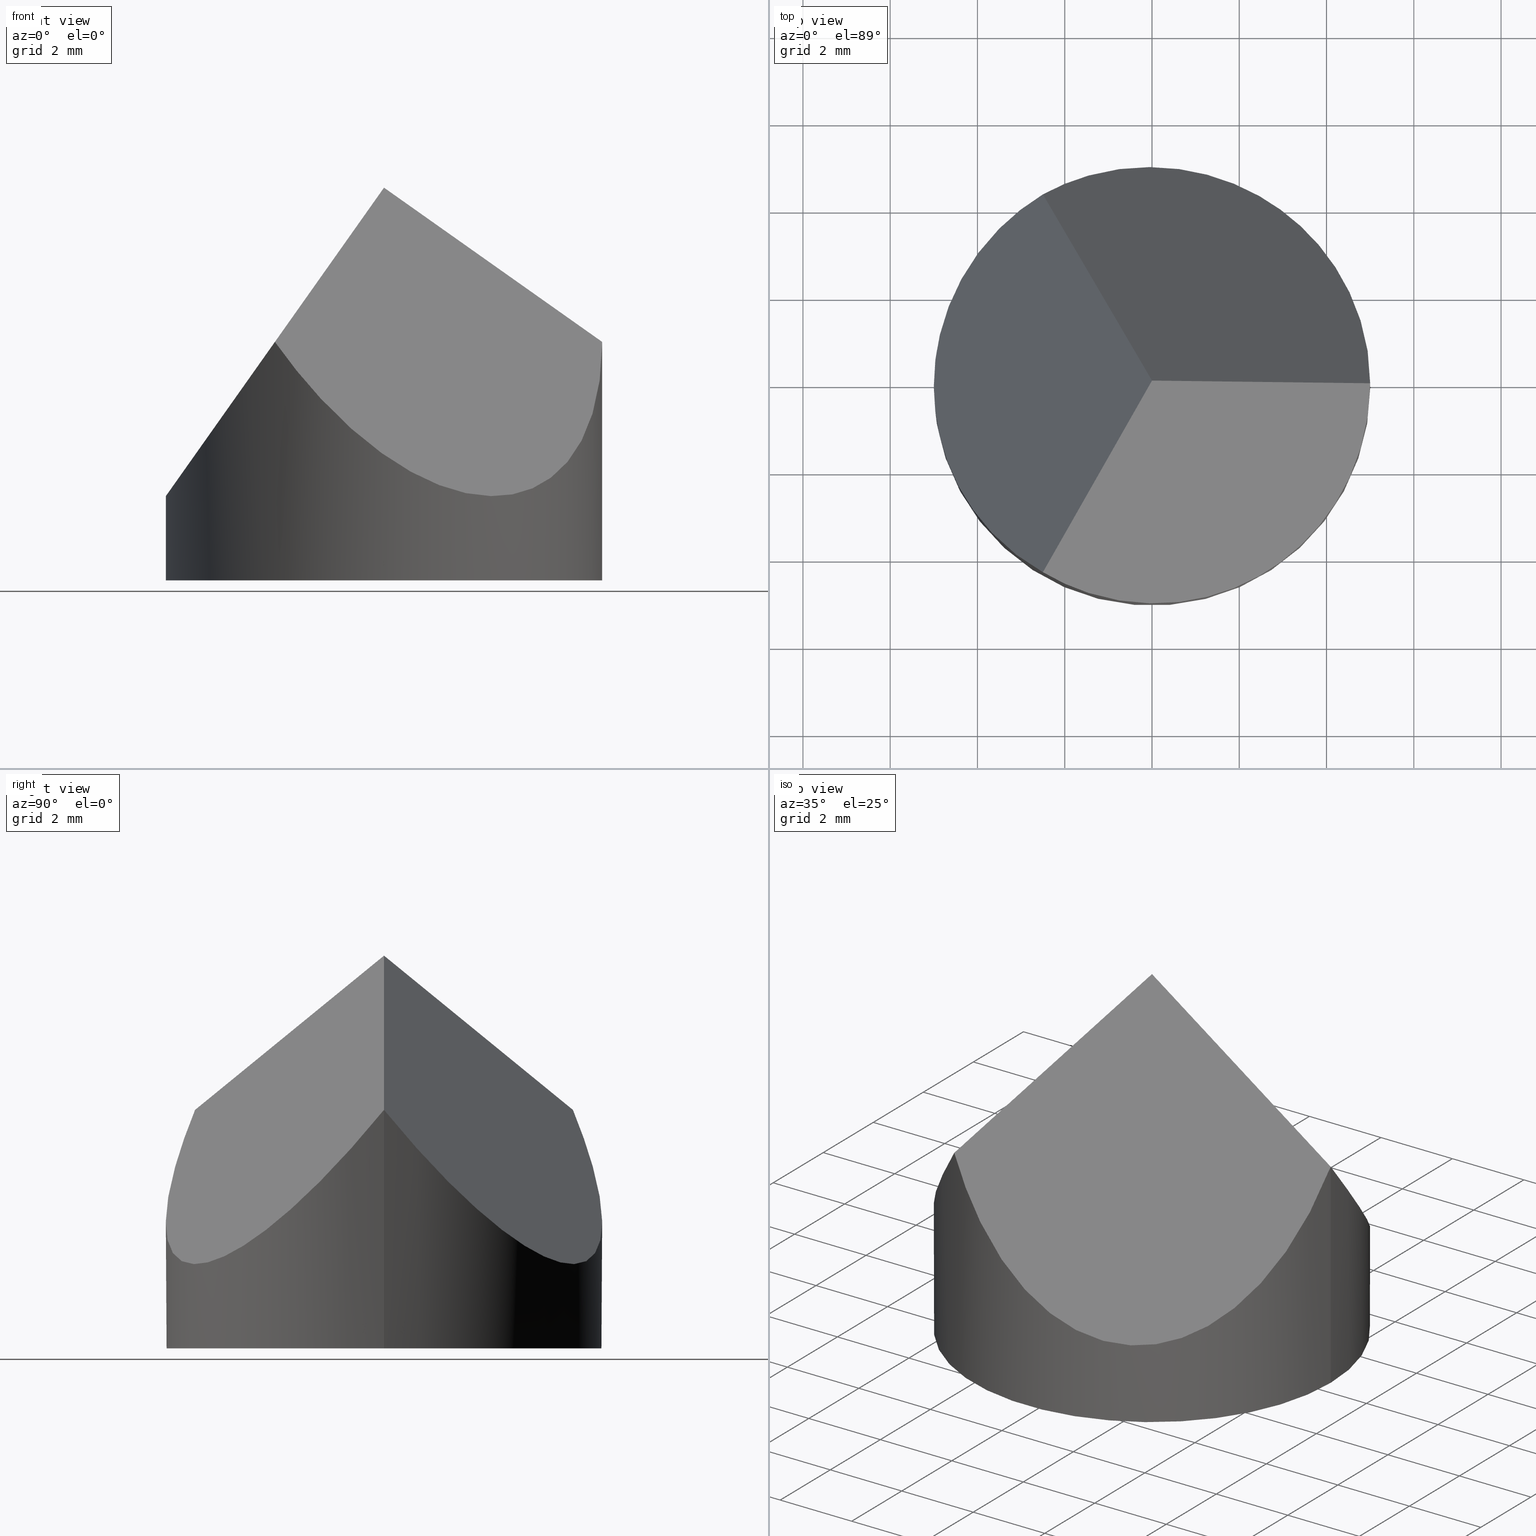
[diagram: canonical four-view strip — front | top / right | iso, engineering-drawing reading convention]
A machine part, canonical four-view strip (front | top / right | iso — engineering-drawing reading convention). The complete STEP part file that produces these views, byte-faithful:
ISO-10303-21;
HEADER;
FILE_DESCRIPTION (( 'STEP AP203' ),
    '1' );
FILE_NAME ('371501.STEP',
    '2019-07-24T08:01:09',
    ( '' ),
    ( '' ),
    'SwSTEP 2.0',
    'SolidWorks 2016',
    '' );
FILE_SCHEMA (( 'CONFIG_CONTROL_DESIGN' ));
ENDSEC;

DATA;
#1 = CARTESIAN_POINT ( 'NONE',  ( 11.69134295108994500, 6.749999999999978700, 9.000000000000000000 ) ) ;
#2 = EDGE_CURVE ( 'NONE', #269, #208, #50, .T. ) ;
#3 = APPROVAL_DATE_TIME ( #197, #143 ) ;
#4 = ORIENTED_EDGE ( 'NONE', *, *, #281, .T. ) ;
#5 = CALENDAR_DATE ( 2019, 24, 7 ) ;
#6 = SECURITY_CLASSIFICATION ( '', '', #232 ) ;
#7 = EDGE_CURVE ( 'NONE', #274, #170, #89, .T. ) ;
#8 = ORIENTED_EDGE ( 'NONE', *, *, #180, .T. ) ;
#9 = COORDINATED_UNIVERSAL_TIME_OFFSET ( 8, 0, .AHEAD. ) ;
#10 = PERSON_AND_ORGANIZATION_ROLE ( 'classification_officer' ) ;
#11 = EDGE_LOOP ( 'NONE', ( #287, #4, #294, #28 ) ) ;
#12 = CARTESIAN_POINT ( 'NONE',  ( -4.084936490538905400, 3.415063509461090600, 3.224227220163949700 ) ) ;
#13 = PERSON_AND_ORGANIZATION ( #14, #183 ) ;
#14 = PERSON ( 'δָ��', 'δָ��', 'δָ��', ('δָ��'), ('δָ��'), ('δָ��') ) ;
#15 = DIRECTION ( 'NONE',  ( 0.0000000000000000000, 0.0000000000000000000, 1.000000000000000000 ) ) ;
#16 = APPLICATION_PROTOCOL_DEFINITION ( 'international standard', 'config_control_design', 1994, #101 ) ;
#17 = DIRECTION ( 'NONE',  ( -0.0000000000000000000, -0.0000000000000000000, -1.000000000000000000 ) ) ;
#18 = APPROVAL_PERSON_ORGANIZATION ( #244, #143, #113 ) ;
#19 = AXIS2_PLACEMENT_3D ( 'NONE', #93, #116, #160 ) ;
#20 = FACE_OUTER_BOUND ( 'NONE', #220, .T. ) ;
#21 = MECHANICAL_CONTEXT ( 'NONE', #108, 'mechanical' ) ;
#22 = CC_DESIGN_DATE_AND_TIME_ASSIGNMENT ( #114, #176, ( #6 ) ) ;
#23 = SHAPE_DEFINITION_REPRESENTATION ( #296, #76 ) ;
#24 = CARTESIAN_POINT ( 'NONE',  ( 0.0000000000000000000, 0.0000000000000000000, 0.0000000000000000000 ) ) ;
#25 = EDGE_LOOP ( 'NONE', ( #273, #86, #96, #109, #72 ) ) ;
#26 = CALENDAR_DATE ( 2019, 24, 7 ) ;
#27 = DIRECTION ( 'NONE',  ( -0.8165531063768112200, -1.387778794088437300E-016, 0.5772703218305786900 ) ) ;
#28 = ORIENTED_EDGE ( 'NONE', *, *, #302, .F. ) ;
#29 = ORIENTED_EDGE ( 'NONE', *, *, #119, .F. ) ;
#30 = PERSON_AND_ORGANIZATION ( #14, #183 ) ;
#31 = EDGE_CURVE ( 'NONE', #66, #208, #161, .T. ) ;
#32 = ORIENTED_EDGE ( 'NONE', *, *, #144, .T. ) ;
#33 = LOCAL_TIME ( 16, 1, 9.000000000000000000, #241 ) ;
#34 = DIRECTION ( 'NONE',  ( -0.5774302165486712200, 0.0000000000000000000, -0.8164400437365591000 ) ) ;
#35 = DESIGN_CONTEXT ( 'detailed design', #257, 'design' ) ;
#36 = APPROVAL_ROLE ( '' ) ;
#37 = APPROVAL ( #235, 'δָ��' ) ;
#38 = CARTESIAN_POINT ( 'NONE',  ( 5.000000000000004400, 9.161633835790454200E-016, 5.465200381197320200 ) ) ;
#39 = ORIENTED_EDGE ( 'NONE', *, *, #31, .F. ) ;
#40 = DIRECTION ( 'NONE',  ( 0.0000000000000000000, 0.0000000000000000000, 1.000000000000000000 ) ) ;
#41 = ADVANCED_FACE ( 'NONE', ( #141 ), #263, .F. ) ;
#42 = PERSON_AND_ORGANIZATION_ROLE ( 'creator' ) ;
#43 = PERSON_AND_ORGANIZATION_ROLE ( 'design_owner' ) ;
#44 =( GEOMETRIC_REPRESENTATION_CONTEXT ( 3 ) GLOBAL_UNCERTAINTY_ASSIGNED_CONTEXT ( ( #147 ) ) GLOBAL_UNIT_ASSIGNED_CONTEXT ( ( #58, #205, #153 ) ) REPRESENTATION_CONTEXT ( 'NONE', 'WORKASPACE' ) );
#45 = PERSON_AND_ORGANIZATION ( #14, #183 ) ;
#46 = DIRECTION ( 'NONE',  ( -0.4082200218682780500, 0.7070578185427394100, -0.5774302165486712200 ) ) ;
#47 = CARTESIAN_POINT ( 'NONE',  ( 1.249999999999996000, -6.495190528383294500, 0.1630009529932650000 ) ) ;
#48 = DIRECTION ( 'NONE',  ( 0.0000000000000000000, 0.0000000000000000000, 1.000000000000000000 ) ) ;
#49 = CC_DESIGN_PERSON_AND_ORGANIZATION_ASSIGNMENT ( #256, #184, ( #137 ) ) ;
#50 = LINE ( 'NONE', #311, #280 ) ;
#51 = DATE_AND_TIME ( #110, #172 ) ;
#52 = FACE_OUTER_BOUND ( 'NONE', #229, .T. ) ;
#53 = CALENDAR_DATE ( 2019, 24, 7 ) ;
#54 = FACE_OUTER_BOUND ( 'NONE', #11, .T. ) ;
#55 = PERSON_AND_ORGANIZATION ( #14, #183 ) ;
#56 = EDGE_CURVE ( 'NONE', #269, #170, #298, .T. ) ;
#57 = CARTESIAN_POINT ( 'NONE',  ( -2.500000000000003100, 4.330127018922186500, 5.465200381197300700 ) ) ;
#58 =( LENGTH_UNIT ( ) NAMED_UNIT ( * ) SI_UNIT ( .MILLI., .METRE. ) );
#59 = CYLINDRICAL_SURFACE ( 'NONE', #107, 5.000000000000000000 ) ;
#60 = PRODUCT ( '371501', '371501', '', ( #62 ) ) ;
#61 = DATE_AND_TIME ( #53, #33 ) ;
#62 = MECHANICAL_CONTEXT ( 'NONE', #101, 'mechanical' ) ;
#63 = CARTESIAN_POINT ( 'NONE',  ( 0.0000000000000000000, 0.0000000000000000000, 9.000000000000000000 ) ) ;
#64 = ADVANCED_FACE ( 'NONE', ( #80 ), #190, .T. ) ;
#65 = PERSON_AND_ORGANIZATION_ROLE ( 'design_supplier' ) ;
#66 = VERTEX_POINT ( 'NONE', #264 ) ;
#67 = COORDINATED_UNIVERSAL_TIME_OFFSET ( 8, 0, .AHEAD. ) ;
#68 = MANIFOLD_SOLID_BREP ( '�г�-����3', #223 ) ;
#69 = DIRECTION ( 'NONE',  ( 0.4082200218682777700, 0.7070578185427395200, 0.5774302165486711000 ) ) ;
#70 = CC_DESIGN_APPROVAL ( #155, ( #139 ) ) ;
#71 = COORDINATED_UNIVERSAL_TIME_OFFSET ( 8, 0, .AHEAD. ) ;
#72 = ORIENTED_EDGE ( 'NONE', *, *, #302, .T. ) ;
#73 = CALENDAR_DATE ( 2019, 24, 7 ) ;
#74 = LINE ( 'NONE', #150, #293 ) ;
#75 = CC_DESIGN_PERSON_AND_ORGANIZATION_ASSIGNMENT ( #55, #43, ( #226 ) ) ;
#76 = ADVANCED_BREP_SHAPE_REPRESENTATION ( '371501', ( #68, #196 ), #44 ) ;
#77 = CIRCLE ( 'NONE', #83, 5.000000000000000000 ) ;
#78 = EDGE_CURVE ( 'NONE', #269, #154, #282, .T. ) ;
#79 = SECURITY_CLASSIFICATION ( '', '', #217 ) ;
#80 = FACE_OUTER_BOUND ( 'NONE', #215, .T. ) ;
#81 = LOCAL_TIME ( 16, 1, 9.000000000000000000, #142 ) ;
#82 = APPROVAL_STATUS ( 'not_yet_approved' ) ;
#83 = AXIS2_PLACEMENT_3D ( 'NONE', #24, #48, #291 ) ;
#84 = APPLICATION_CONTEXT ( 'configuration controlled 3d designs of mechanical parts and assemblies' ) ;
#85 = CARTESIAN_POINT ( 'NONE',  ( 0.0000000000000000000, -24.50000000000000000, 9.000000000000000000 ) ) ;
#86 = ORIENTED_EDGE ( 'NONE', *, *, #2, .T. ) ;
#87 = CARTESIAN_POINT ( 'NONE',  ( -8.673617379884035500E-016, -4.004885026051589500E-016, 9.000000000000001800 ) ) ;
#88 = PERSON_AND_ORGANIZATION_ROLE ( 'creator' ) ;
#89 = LINE ( 'NONE', #115, #182 ) ;
#90 = CARTESIAN_POINT ( 'NONE',  ( -5.000000000000000000, 0.0000000000000000000, 1.930400762394619300 ) ) ;
#91 = APPROVAL ( #258, 'δָ��' ) ;
#92 = ORIENTED_EDGE ( 'NONE', *, *, #2, .F. ) ;
#93 = CARTESIAN_POINT ( 'NONE',  ( 0.0000000000000000000, 0.0000000000000000000, 0.0000000000000000000 ) ) ;
#94 = CC_DESIGN_PERSON_AND_ORGANIZATION_ASSIGNMENT ( #246, #10, ( #6 ) ) ;
#95 = CC_DESIGN_APPROVAL ( #165, ( #122 ) ) ;
#96 = ORIENTED_EDGE ( 'NONE', *, *, #119, .T. ) ;
#97 = ORIENTED_EDGE ( 'NONE', *, *, #7, .T. ) ;
#98 = DATE_AND_TIME ( #171, #191 ) ;
#99 = PRODUCT_DEFINITION_SHAPE ( 'NONE', 'NONE',  #137 ) ;
#100 = CARTESIAN_POINT ( 'NONE',  ( -2.500000000000003100, 4.330127018922186500, 5.465200381197300700 ) ) ;
#101 = APPLICATION_CONTEXT ( 'configuration controlled 3d designs of mechanical parts and assemblies' ) ;
#102 = APPROVAL_PERSON_ORGANIZATION ( #126, #155, #278 ) ;
#103 = APPROVAL_STATUS ( 'not_yet_approved' ) ;
#104 = CARTESIAN_POINT ( 'NONE',  ( -2.500000000000003100, 4.330127018922186500, 5.465200381197300700 ) ) ;
#105 = CC_DESIGN_PERSON_AND_ORGANIZATION_ASSIGNMENT ( #136, #228, ( #60 ) ) ;
#106 =( BOUNDED_CURVE ( )  B_SPLINE_CURVE ( 3, ( #133, #289, #238, #90 ),
 .UNSPECIFIED., .F., .T. ) 
 B_SPLINE_CURVE_WITH_KNOTS ( ( 4, 4 ),
 ( 5.235987755982989700, 6.283185307179586200 ),
 .UNSPECIFIED. ) 
 CURVE ( )  GEOMETRIC_REPRESENTATION_ITEM ( )  RATIONAL_B_SPLINE_CURVE ( ( 1.000000000000000000, 0.9106836025229592100, 0.9106836025229592100, 1.000000000000000000 ) ) 
 REPRESENTATION_ITEM ( '' )  );
#107 = AXIS2_PLACEMENT_3D ( 'NONE', #63, #277, #231 ) ;
#108 = APPLICATION_CONTEXT ( 'configuration controlled 3d designs of mechanical parts and assemblies' ) ;
#109 = ORIENTED_EDGE ( 'NONE', *, *, #204, .F. ) ;
#110 = CALENDAR_DATE ( 2019, 24, 7 ) ;
#111 = DIRECTION ( 'NONE',  ( -0.0000000000000000000, -0.0000000000000000000, -1.000000000000000000 ) ) ;
#112 = PRODUCT_RELATED_PRODUCT_CATEGORY ( 'detail', '', ( #226 ) ) ;
#113 = APPROVAL_ROLE ( '' ) ;
#114 = DATE_AND_TIME ( #73, #175 ) ;
#115 = CARTESIAN_POINT ( 'NONE',  ( 7.073520084914156000, -12.25169617543019700, 19.00139043989909000 ) ) ;
#116 = DIRECTION ( 'NONE',  ( 0.0000000000000000000, 0.0000000000000000000, 1.000000000000000000 ) ) ;
#117 = LOCAL_TIME ( 16, 1, 9.000000000000000000, #71 ) ;
#118 = LOCAL_TIME ( 16, 1, 9.000000000000000000, #67 ) ;
#119 = EDGE_CURVE ( 'NONE', #208, #66, #77, .T. ) ;
#120 = LINE ( 'NONE', #225, #194 ) ;
#121 = APPROVAL_PERSON_ORGANIZATION ( #270, #91, #307 ) ;
#122 = PRODUCT_DEFINITION_FORMATION_WITH_SPECIFIED_SOURCE ( '�κ�', '', #60, .NOT_KNOWN. ) ;
#123 = ORIENTED_EDGE ( 'NONE', *, *, #204, .T. ) ;
#124 = LOCAL_TIME ( 16, 1, 9.000000000000000000, #198 ) ;
#125 = CC_DESIGN_PERSON_AND_ORGANIZATION_ASSIGNMENT ( #195, #186, ( #122 ) ) ;
#126 = PERSON_AND_ORGANIZATION ( #14, #183 ) ;
#127 = PERSON_AND_ORGANIZATION_ROLE ( 'creator' ) ;
#128 = DIRECTION ( 'NONE',  ( -1.000000000000000000, 0.0000000000000000000, 0.0000000000000000000 ) ) ;
#129 = ORIENTED_EDGE ( 'NONE', *, *, #31, .T. ) ;
#130 = PERSON_AND_ORGANIZATION ( #14, #183 ) ;
#131 = DIRECTION ( 'NONE',  ( 1.000000000000000000, 0.0000000000000000000, 0.0000000000000000000 ) ) ;
#132 = APPROVAL_STATUS ( 'not_yet_approved' ) ;
#133 = CARTESIAN_POINT ( 'NONE',  ( -2.500000000000008400, -4.330127018922198100, 5.465200381197298900 ) ) ;
#134 = FACE_OUTER_BOUND ( 'NONE', #25, .T. ) ;
#135 = ADVANCED_FACE ( 'NONE', ( #20 ), #219, .F. ) ;
#136 = PERSON_AND_ORGANIZATION ( #14, #183 ) ;
#137 = PRODUCT_DEFINITION ( 'δ֪', '', #303, #35 ) ;
#138 = DATE_AND_TIME ( #253, #117 ) ;
#139 = PRODUCT_DEFINITION ( 'δ֪', '', #122, #233 ) ;
#140 = AXIS2_PLACEMENT_3D ( 'NONE', #276, #206, #128 ) ;
#141 = FACE_OUTER_BOUND ( 'NONE', #174, .T. ) ;
#142 = COORDINATED_UNIVERSAL_TIME_OFFSET ( 8, 0, .AHEAD. ) ;
#143 = APPROVAL ( #209, 'δָ��' ) ;
#144 = EDGE_CURVE ( 'NONE', #154, #148, #106, .T. ) ;
#145 = ORIENTED_EDGE ( 'NONE', *, *, #78, .T. ) ;
#146 = APPROVAL ( #82, 'δָ��' ) ;
#147 = UNCERTAINTY_MEASURE_WITH_UNIT (LENGTH_MEASURE( 1.000000000000000100E-005 ), #58, 'distance_accuracy_value', 'NONE');
#148 = VERTEX_POINT ( 'NONE', #207 ) ;
#149 = COORDINATED_UNIVERSAL_TIME_OFFSET ( 8, 0, .AHEAD. ) ;
#150 = CARTESIAN_POINT ( 'NONE',  ( -5.000000000000000000, 0.0000000000000000000, 9.000000000000000000 ) ) ;
#151 = CC_DESIGN_APPROVAL ( #91, ( #137 ) ) ;
#152 = CARTESIAN_POINT ( 'NONE',  ( 0.0000000000000000000, 0.0000000000000000000, 0.0000000000000000000 ) ) ;
#153 =( NAMED_UNIT ( * ) SI_UNIT ( $, .STERADIAN. ) SOLID_ANGLE_UNIT ( ) );
#154 = VERTEX_POINT ( 'NONE', #203 ) ;
#155 = APPROVAL ( #103, 'δָ��' ) ;
#156 = DIRECTION ( 'NONE',  ( 0.8164400437365592100, 0.0000000000000000000, -0.5774302165486713300 ) ) ;
#157 = CC_DESIGN_DATE_AND_TIME_ASSIGNMENT ( #61, #181, ( #137 ) ) ;
#158 = DATE_TIME_ROLE ( 'creation_date' ) ;
#159 = APPROVAL_ROLE ( '' ) ;
#160 = DIRECTION ( 'NONE',  ( 1.000000000000000000, 0.0000000000000000000, -0.0000000000000000000 ) ) ;
#161 = CIRCLE ( 'NONE', #192, 5.000000000000000000 ) ;
#162 = PERSON_AND_ORGANIZATION ( #14, #183 ) ;
#163 = CC_DESIGN_APPROVAL ( #37, ( #303 ) ) ;
#164 = ADVANCED_FACE ( 'NONE', ( #54 ), #227, .F. ) ;
#165 = APPROVAL ( #132, 'δָ��' ) ;
#166 = DIRECTION ( 'NONE',  ( 1.000000000000000000, 0.0000000000000000000, 0.0000000000000000000 ) ) ;
#167 = CARTESIAN_POINT ( 'NONE',  ( 14.72243186433548900, -8.499999999999966200, 9.000000000000000000 ) ) ;
#168 =( BOUNDED_CURVE ( )  B_SPLINE_CURVE ( 3, ( #38, #279, #200, #57 ),
 .UNSPECIFIED., .F., .F. ) 
 B_SPLINE_CURVE_WITH_KNOTS ( ( 4, 4 ),
 ( 5.235987755982986200, 7.330382858376182800 ),
 .UNSPECIFIED. ) 
 CURVE ( )  GEOMETRIC_REPRESENTATION_ITEM ( )  RATIONAL_B_SPLINE_CURVE ( ( 1.000000000000000000, 0.6666666666666663000, 0.6666666666666663000, 1.000000000000000000 ) ) 
 REPRESENTATION_ITEM ( '' )  );
#169 = CC_DESIGN_APPROVAL ( #146, ( #6 ) ) ;
#170 = VERTEX_POINT ( 'NONE', #87 ) ;
#171 = CALENDAR_DATE ( 2019, 24, 7 ) ;
#172 = LOCAL_TIME ( 16, 1, 9.000000000000000000, #224 ) ;
#173 = LOCAL_TIME ( 16, 1, 9.000000000000000000, #268 ) ;
#174 = EDGE_LOOP ( 'NONE', ( #260, #245, #308 ) ) ;
#175 = LOCAL_TIME ( 16, 1, 9.000000000000000000, #149 ) ;
#176 = DATE_TIME_ROLE ( 'classification_date' ) ;
#177 = CC_DESIGN_SECURITY_CLASSIFICATION ( #6, ( #303 ) ) ;
#178 = DATE_AND_TIME ( #5, #118 ) ;
#179 = CARTESIAN_POINT ( 'NONE',  ( 0.0000000000000000000, 0.0000000000000000000, 0.0000000000000000000 ) ) ;
#180 = EDGE_CURVE ( 'NONE', #269, #274, #168, .T. ) ;
#181 = DATE_TIME_ROLE ( 'creation_date' ) ;
#182 = VECTOR ( 'NONE', #292, 1000.000000000000100 ) ;
#183 = ORGANIZATION ( 'δָ��', 'δָ��', '' ) ;
#184 = PERSON_AND_ORGANIZATION_ROLE ( 'creator' ) ;
#185 = CC_DESIGN_APPROVAL ( #143, ( #79 ) ) ;
#186 = PERSON_AND_ORGANIZATION_ROLE ( 'design_supplier' ) ;
#187 = CARTESIAN_POINT ( 'NONE',  ( 9.816313587227853100, 1.734723475976807100E-015, 2.060259694763890700 ) ) ;
#188 = PERSON_AND_ORGANIZATION ( #14, #183 ) ;
#189 = CARTESIAN_POINT ( 'NONE',  ( 5.000000000000000900, -4.330127018922195400, 0.1630009529932771300 ) ) ;
#190 = PLANE ( 'NONE',  #267 ) ;
#191 = LOCAL_TIME ( 16, 1, 9.000000000000000000, #9 ) ;
#192 = AXIS2_PLACEMENT_3D ( 'NONE', #310, #259, #166 ) ;
#193 = CC_DESIGN_SECURITY_CLASSIFICATION ( #79, ( #122 ) ) ;
#194 = VECTOR ( 'NONE', #249, 999.9999999999998900 ) ;
#195 = PERSON_AND_ORGANIZATION ( #14, #183 ) ;
#196 = AXIS2_PLACEMENT_3D ( 'NONE', #152, #15, #131 ) ;
#197 = DATE_AND_TIME ( #222, #173 ) ;
#198 = COORDINATED_UNIVERSAL_TIME_OFFSET ( 8, 0, .AHEAD. ) ;
#199 = CC_DESIGN_PERSON_AND_ORGANIZATION_ASSIGNMENT ( #13, #42, ( #122 ) ) ;
#200 = CARTESIAN_POINT ( 'NONE',  ( 1.249999999999993800, 6.495190528383295400, 0.1630009529932606400 ) ) ;
#201 = ORIENTED_EDGE ( 'NONE', *, *, #56, .F. ) ;
#202 = APPROVAL_DATE_TIME ( #272, #165 ) ;
#203 = CARTESIAN_POINT ( 'NONE',  ( -2.500000000000008400, -4.330127018922198100, 5.465200381197298900 ) ) ;
#204 = EDGE_CURVE ( 'NONE', #148, #66, #74, .T. ) ;
#205 =( NAMED_UNIT ( * ) PLANE_ANGLE_UNIT ( ) SI_UNIT ( $, .RADIAN. ) );
#206 = DIRECTION ( 'NONE',  ( -0.0000000000000000000, -0.0000000000000000000, -1.000000000000000000 ) ) ;
#207 = CARTESIAN_POINT ( 'NONE',  ( -5.000000000000000000, 0.0000000000000000000, 1.930400762394619300 ) ) ;
#208 = VERTEX_POINT ( 'NONE', #283 ) ;
#209 = APPROVAL_STATUS ( 'not_yet_approved' ) ;
#210 = APPLICATION_PROTOCOL_DEFINITION ( 'international standard', 'config_control_design', 1994, #108 ) ;
#211 = AXIS2_PLACEMENT_3D ( 'NONE', #85, #156, #34 ) ;
#212 = DATE_TIME_ROLE ( 'classification_date' ) ;
#213 = DIRECTION ( 'NONE',  ( 1.000000000000000000, 0.0000000000000000000, 0.0000000000000000000 ) ) ;
#214 =( BOUNDED_CURVE ( )  B_SPLINE_CURVE ( 3, ( #300, #251, #12, #104 ),
 .UNSPECIFIED., .F., .F. ) 
 B_SPLINE_CURVE_WITH_KNOTS ( ( 4, 4 ),
 ( 0.0000000000000000000, 1.047197551196596100 ),
 .UNSPECIFIED. ) 
 CURVE ( )  GEOMETRIC_REPRESENTATION_ITEM ( )  RATIONAL_B_SPLINE_CURVE ( ( 1.000000000000000000, 0.9106836025229593200, 0.9106836025229593200, 1.000000000000000000 ) ) 
 REPRESENTATION_ITEM ( '' )  );
#215 = EDGE_LOOP ( 'NONE', ( #201, #8, #97 ) ) ;
#216 = APPROVAL_PERSON_ORGANIZATION ( #221, #165, #234 ) ;
#217 = SECURITY_CLASSIFICATION_LEVEL ( 'unclassified' ) ;
#218 = CARTESIAN_POINT ( 'NONE',  ( -2.500000000000008400, -4.330127018922198100, 5.465200381197298900 ) ) ;
#219 = PLANE ( 'NONE',  #19 ) ;
#220 = EDGE_LOOP ( 'NONE', ( #39, #29 ) ) ;
#221 = PERSON_AND_ORGANIZATION ( #14, #183 ) ;
#222 = CALENDAR_DATE ( 2019, 24, 7 ) ;
#223 = CLOSED_SHELL ( 'NONE', ( #255, #284, #164, #135, #64, #41 ) ) ;
#224 = COORDINATED_UNIVERSAL_TIME_OFFSET ( 8, 0, .AHEAD. ) ;
#225 = CARTESIAN_POINT ( 'NONE',  ( -7.073520084914155100, -12.25169617543020500, -1.001390439899090700 ) ) ;
#226 = PRODUCT ( '371501', '371501', '', ( #21 ) ) ;
#227 = PLANE ( 'NONE',  #211 ) ;
#228 = PERSON_AND_ORGANIZATION_ROLE ( 'design_owner' ) ;
#229 = EDGE_LOOP ( 'NONE', ( #92, #145, #32, #123, #129 ) ) ;
#230 = AXIS2_PLACEMENT_3D ( 'NONE', #179, #40, #213 ) ;
#231 = DIRECTION ( 'NONE',  ( -1.000000000000000000, 0.0000000000000000000, 0.0000000000000000000 ) ) ;
#232 = SECURITY_CLASSIFICATION_LEVEL ( 'unclassified' ) ;
#233 = DESIGN_CONTEXT ( 'detailed design', #84, 'design' ) ;
#234 = APPROVAL_ROLE ( '' ) ;
#235 = APPROVAL_STATUS ( 'not_yet_approved' ) ;
#236 = APPROVAL_DATE_TIME ( #51, #146 ) ;
#237 = PERSON_AND_ORGANIZATION_ROLE ( 'classification_officer' ) ;
#238 = CARTESIAN_POINT ( 'NONE',  ( -5.000000000000000000, -1.830127018922190500, 1.930400762394619100 ) ) ;
#239 = CALENDAR_DATE ( 2019, 24, 7 ) ;
#240 = CARTESIAN_POINT ( 'NONE',  ( 5.000000000000004400, 9.161633835790454200E-016, 5.465200381197320200 ) ) ;
#241 = COORDINATED_UNIVERSAL_TIME_OFFSET ( 8, 0, .AHEAD. ) ;
#242 = APPROVAL_PERSON_ORGANIZATION ( #30, #37, #159 ) ;
#243 = AXIS2_PLACEMENT_3D ( 'NONE', #1, #46, #290 ) ;
#244 = PERSON_AND_ORGANIZATION ( #14, #183 ) ;
#245 = ORIENTED_EDGE ( 'NONE', *, *, #281, .F. ) ;
#246 = PERSON_AND_ORGANIZATION ( #14, #183 ) ;
#247 = CC_DESIGN_PERSON_AND_ORGANIZATION_ASSIGNMENT ( #162, #65, ( #303 ) ) ;
#248 = PERSON_AND_ORGANIZATION ( #14, #183 ) ;
#249 = DIRECTION ( 'NONE',  ( 0.4082765531884057200, 0.7071557336614138200, 0.5772703218305810200 ) ) ;
#250 = APPLICATION_PROTOCOL_DEFINITION ( 'international standard', 'config_control_design', 1994, #84 ) ;
#251 = CARTESIAN_POINT ( 'NONE',  ( -4.999999999999999100, 1.830127018922189900, 1.930400762394619100 ) ) ;
#252 = CC_DESIGN_PERSON_AND_ORGANIZATION_ASSIGNMENT ( #130, #88, ( #303 ) ) ;
#253 = CALENDAR_DATE ( 2019, 24, 7 ) ;
#254 = VECTOR ( 'NONE', #27, 1000.000000000000200 ) ;
#255 = ADVANCED_FACE ( 'NONE', ( #134 ), #301, .T. ) ;
#256 = PERSON_AND_ORGANIZATION ( #14, #183 ) ;
#257 = APPLICATION_CONTEXT ( 'configuration controlled 3d designs of mechanical parts and assemblies' ) ;
#258 = APPROVAL_STATUS ( 'not_yet_approved' ) ;
#259 = DIRECTION ( 'NONE',  ( 0.0000000000000000000, 0.0000000000000000000, 1.000000000000000000 ) ) ;
#260 = ORIENTED_EDGE ( 'NONE', *, *, #56, .T. ) ;
#261 = LOCAL_TIME ( 16, 1, 9.000000000000000000, #295 ) ;
#262 = CC_DESIGN_DATE_AND_TIME_ASSIGNMENT ( #138, #212, ( #79 ) ) ;
#263 = PLANE ( 'NONE',  #243 ) ;
#264 = CARTESIAN_POINT ( 'NONE',  ( -5.000000000000000000, 0.0000000000000000000, 0.0000000000000000000 ) ) ;
#265 = CC_DESIGN_PERSON_AND_ORGANIZATION_ASSIGNMENT ( #45, #127, ( #139 ) ) ;
#266 = DIRECTION ( 'NONE',  ( 0.0000000000000000000, -0.6325343505460012700, 0.7745323075116675700 ) ) ;
#267 = AXIS2_PLACEMENT_3D ( 'NONE', #167, #69, #266 ) ;
#268 = COORDINATED_UNIVERSAL_TIME_OFFSET ( 8, 0, .AHEAD. ) ;
#269 = VERTEX_POINT ( 'NONE', #305 ) ;
#270 = PERSON_AND_ORGANIZATION ( #14, #183 ) ;
#271 = CC_DESIGN_PERSON_AND_ORGANIZATION_ASSIGNMENT ( #188, #237, ( #79 ) ) ;
#272 = DATE_AND_TIME ( #26, #81 ) ;
#273 = ORIENTED_EDGE ( 'NONE', *, *, #180, .F. ) ;
#274 = VERTEX_POINT ( 'NONE', #100 ) ;
#275 = APPROVAL_DATE_TIME ( #98, #155 ) ;
#276 = CARTESIAN_POINT ( 'NONE',  ( 0.0000000000000000000, 0.0000000000000000000, 9.000000000000000000 ) ) ;
#277 = DIRECTION ( 'NONE',  ( -0.0000000000000000000, -0.0000000000000000000, -1.000000000000000000 ) ) ;
#278 = APPROVAL_ROLE ( '' ) ;
#279 = CARTESIAN_POINT ( 'NONE',  ( 5.000000000000000900, 4.330127018922196300, 0.1630009529932728000 ) ) ;
#280 = VECTOR ( 'NONE', #111, 1000.000000000000000 ) ;
#281 = EDGE_CURVE ( 'NONE', #154, #170, #120, .T. ) ;
#282 =( BOUNDED_CURVE ( )  B_SPLINE_CURVE ( 3, ( #240, #189, #47, #218 ),
 .UNSPECIFIED., .F., .F. ) 
 B_SPLINE_CURVE_WITH_KNOTS ( ( 4, 4 ),
 ( 5.235987755982986200, 7.330382858376182800 ),
 .UNSPECIFIED. ) 
 CURVE ( )  GEOMETRIC_REPRESENTATION_ITEM ( )  RATIONAL_B_SPLINE_CURVE ( ( 1.000000000000000000, 0.6666666666666663000, 0.6666666666666663000, 1.000000000000000000 ) ) 
 REPRESENTATION_ITEM ( '' )  );
#283 = CARTESIAN_POINT ( 'NONE',  ( 5.000000000000000000, 6.123233995736766300E-016, 0.0000000000000000000 ) ) ;
#284 = ADVANCED_FACE ( 'NONE', ( #52 ), #59, .T. ) ;
#285 = APPLICATION_PROTOCOL_DEFINITION ( 'international standard', 'config_control_design', 1994, #257 ) ;
#286 = PRODUCT_RELATED_PRODUCT_CATEGORY ( 'detail', '', ( #60 ) ) ;
#287 = ORIENTED_EDGE ( 'NONE', *, *, #144, .F. ) ;
#288 = DATE_AND_TIME ( #312, #261 ) ;
#289 = CARTESIAN_POINT ( 'NONE',  ( -4.084936490538904500, -3.415063509461093300, 3.224227220163951900 ) ) ;
#290 = DIRECTION ( 'NONE',  ( 0.0000000000000000000, 0.6325343505460013800, 0.7745323075116674600 ) ) ;
#291 = DIRECTION ( 'NONE',  ( 1.000000000000000000, 0.0000000000000000000, 0.0000000000000000000 ) ) ;
#292 = DIRECTION ( 'NONE',  ( 0.4082765531884057800, -0.7071557336614134900, 0.5772703218305811300 ) ) ;
#293 = VECTOR ( 'NONE', #17, 1000.000000000000000 ) ;
#294 = ORIENTED_EDGE ( 'NONE', *, *, #7, .F. ) ;
#295 = COORDINATED_UNIVERSAL_TIME_OFFSET ( 8, 0, .AHEAD. ) ;
#296 = PRODUCT_DEFINITION_SHAPE ( 'NONE', 'NONE',  #139 ) ;
#297 = DATE_AND_TIME ( #239, #124 ) ;
#298 = LINE ( 'NONE', #187, #254 ) ;
#299 = APPROVAL_DATE_TIME ( #297, #91 ) ;
#300 = CARTESIAN_POINT ( 'NONE',  ( -5.000000000000000000, 0.0000000000000000000, 1.930400762394619300 ) ) ;
#301 = CYLINDRICAL_SURFACE ( 'NONE', #140, 5.000000000000000000 ) ;
#302 = EDGE_CURVE ( 'NONE', #148, #274, #214, .T. ) ;
#303 = PRODUCT_DEFINITION_FORMATION_WITH_SPECIFIED_SOURCE ( '�κ�', '', #226, .NOT_KNOWN. ) ;
#304 = APPROVAL_PERSON_ORGANIZATION ( #248, #146, #36 ) ;
#305 = CARTESIAN_POINT ( 'NONE',  ( 5.000000000000004400, 9.161633835790454200E-016, 5.465200381197320200 ) ) ;
#306 = CC_DESIGN_DATE_AND_TIME_ASSIGNMENT ( #288, #158, ( #139 ) ) ;
#307 = APPROVAL_ROLE ( '' ) ;
#308 = ORIENTED_EDGE ( 'NONE', *, *, #78, .F. ) ;
#309 = APPROVAL_DATE_TIME ( #178, #37 ) ;
#310 = CARTESIAN_POINT ( 'NONE',  ( 0.0000000000000000000, 0.0000000000000000000, 0.0000000000000000000 ) ) ;
#311 = CARTESIAN_POINT ( 'NONE',  ( 5.000000000000000000, 6.123233995736766300E-016, 9.000000000000000000 ) ) ;
#312 = CALENDAR_DATE ( 2019, 24, 7 ) ;
ENDSEC;
END-ISO-10303-21;
